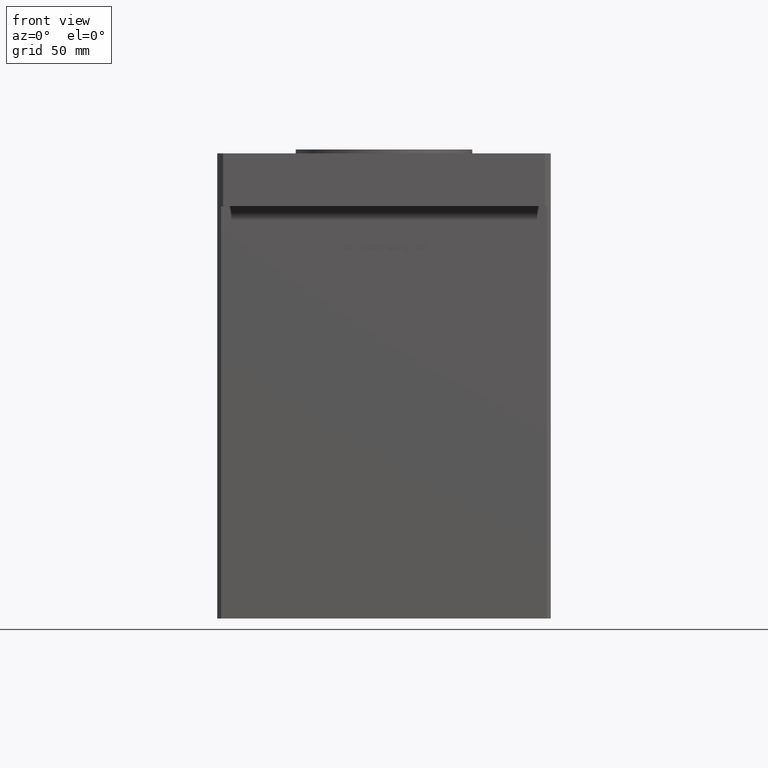
[diagram: clean part render]
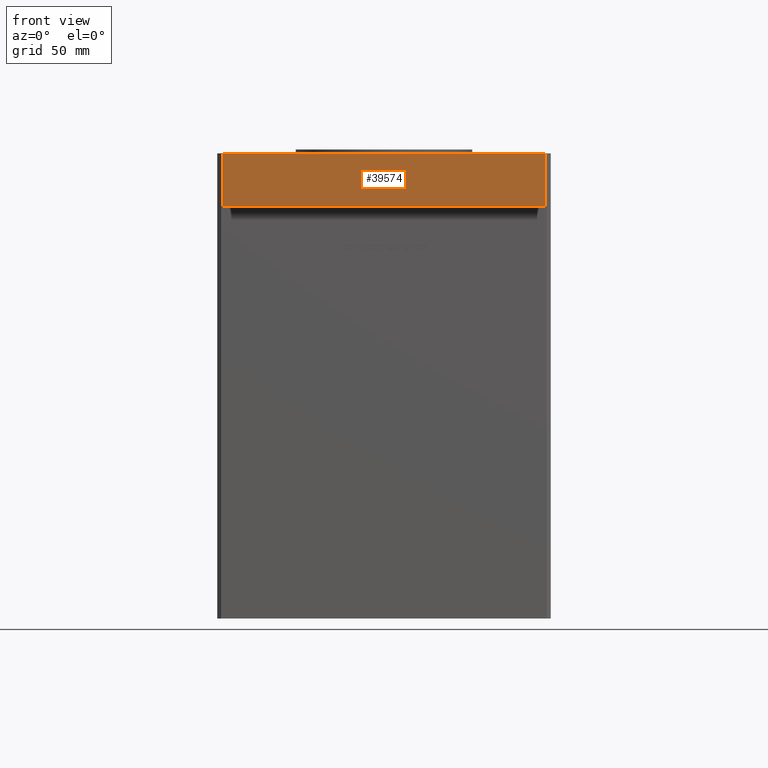
[diagram: same view with one face highlighted and labeled with its STEP entity id]
A machine part, front view. The second image highlights one B-rep face of the part: STEP entity #39574.
In plain terms, the highlighted planar face has unit normal (-0, 1, 0).
Its self-contained STEP definition (entity closure, byte-faithful):
#1174 = EDGE_LOOP ( 'NONE', ( #2955, #33274, #53525, #45936 ) ) ;
#2955 = ORIENTED_EDGE ( 'NONE', *, *, #8119, .T. ) ;
#3877 = VERTEX_POINT ( 'NONE', #18669 ) ;
#8119 = EDGE_CURVE ( 'NONE', #49345, #3877, #16016, .T. ) ;
#11689 = DIRECTION ( 'NONE',  ( 1.000000000000000000, 6.769652589177783879E-16, 0.000000000000000000 ) ) ;
#14135 = CARTESIAN_POINT ( 'NONE',  ( -81.99999999999998579, -115.0000000000000142, 27.00000000000000000 ) ) ;
#14597 = EDGE_CURVE ( 'NONE', #50481, #49345, #50034, .T. ) ;
#15061 = PLANE ( 'NONE',  #47062 ) ;
#16016 = LINE ( 'NONE', #48796, #35206 ) ;
#18669 = CARTESIAN_POINT ( 'NONE',  ( 82.00000000000002842, -114.9999999999999147, 0.000000000000000000 ) ) ;
#21748 = EDGE_CURVE ( 'NONE', #50481, #43063, #44785, .T. ) ;
#23975 = DIRECTION ( 'NONE',  ( -1.000000000000000000, -6.769652589177782893E-16, 0.000000000000000000 ) ) ;
#24197 = CARTESIAN_POINT ( 'NONE',  ( -81.99999999999998579, -115.0000000000000142, 27.00000000000000000 ) ) ;
#25866 = CARTESIAN_POINT ( 'NONE',  ( -81.99999999999998579, -115.0000000000000142, 0.000000000000000000 ) ) ;
#26009 = CARTESIAN_POINT ( 'NONE',  ( 82.00000000000002842, -114.9999999999999147, 27.00000000000000000 ) ) ;
#26187 = CARTESIAN_POINT ( 'NONE',  ( -81.99999999999998579, -115.0000000000000142, 27.00000000000000000 ) ) ;
#27506 = FACE_OUTER_BOUND ( 'NONE', #1174, .T. ) ;
#27557 = VECTOR ( 'NONE', #33514, 1000.000000000000000 ) ;
#27769 = CARTESIAN_POINT ( 'NONE',  ( -81.99999999999998579, -115.0000000000000142, 27.00000000000000000 ) ) ;
#28737 = EDGE_CURVE ( 'NONE', #43063, #3877, #37670, .T. ) ;
#31570 = DIRECTION ( 'NONE',  ( -6.769652589177782893E-16, 1.000000000000000000, 0.000000000000000000 ) ) ;
#33274 = ORIENTED_EDGE ( 'NONE', *, *, #28737, .F. ) ;
#33514 = DIRECTION ( 'NONE',  ( -0.000000000000000000, -0.000000000000000000, -1.000000000000000000 ) ) ;
#35206 = VECTOR ( 'NONE', #11689, 1000.000000000000000 ) ;
#37670 = LINE ( 'NONE', #26009, #40799 ) ;
#39574 = ADVANCED_FACE ( 'NONE', ( #27506 ), #15061, .F. ) ;
#40725 = DIRECTION ( 'NONE',  ( 1.000000000000000000, 6.769652589177783879E-16, 0.000000000000000000 ) ) ;
#40799 = VECTOR ( 'NONE', #41995, 1000.000000000000000 ) ;
#41552 = CARTESIAN_POINT ( 'NONE',  ( 82.00000000000002842, -114.9999999999999147, 27.00000000000000000 ) ) ;
#41995 = DIRECTION ( 'NONE',  ( -0.000000000000000000, -0.000000000000000000, -1.000000000000000000 ) ) ;
#43063 = VERTEX_POINT ( 'NONE', #41552 ) ;
#44785 = LINE ( 'NONE', #24197, #44937 ) ;
#44937 = VECTOR ( 'NONE', #40725, 1000.000000000000000 ) ;
#45936 = ORIENTED_EDGE ( 'NONE', *, *, #14597, .T. ) ;
#47062 = AXIS2_PLACEMENT_3D ( 'NONE', #27769, #31570, #23975 ) ;
#48796 = CARTESIAN_POINT ( 'NONE',  ( -81.99999999999998579, -115.0000000000000142, 0.000000000000000000 ) ) ;
#49345 = VERTEX_POINT ( 'NONE', #25866 ) ;
#50034 = LINE ( 'NONE', #26187, #27557 ) ;
#50481 = VERTEX_POINT ( 'NONE', #14135 ) ;
#53525 = ORIENTED_EDGE ( 'NONE', *, *, #21748, .F. ) ;